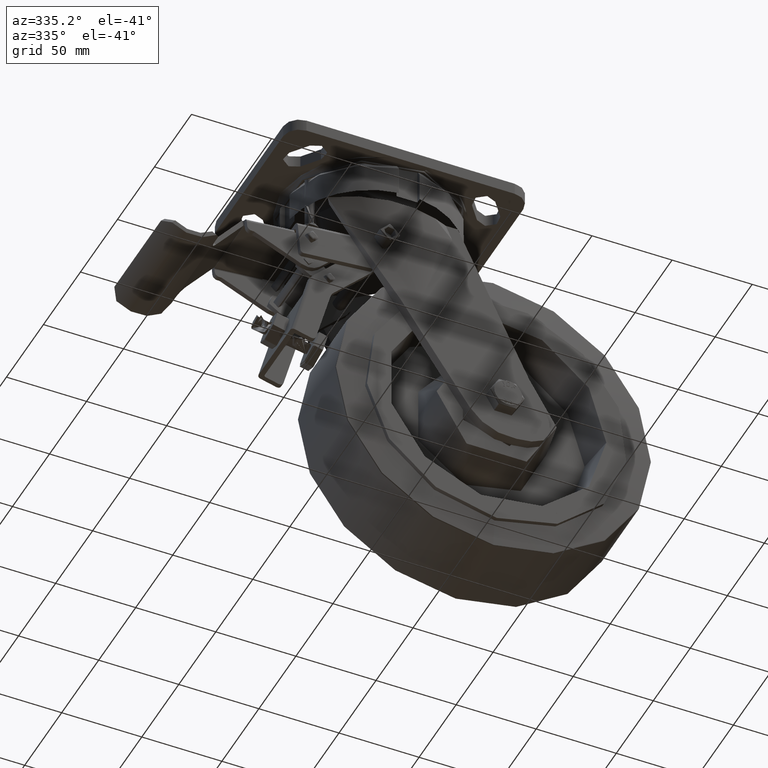
[diagram: clean part render]
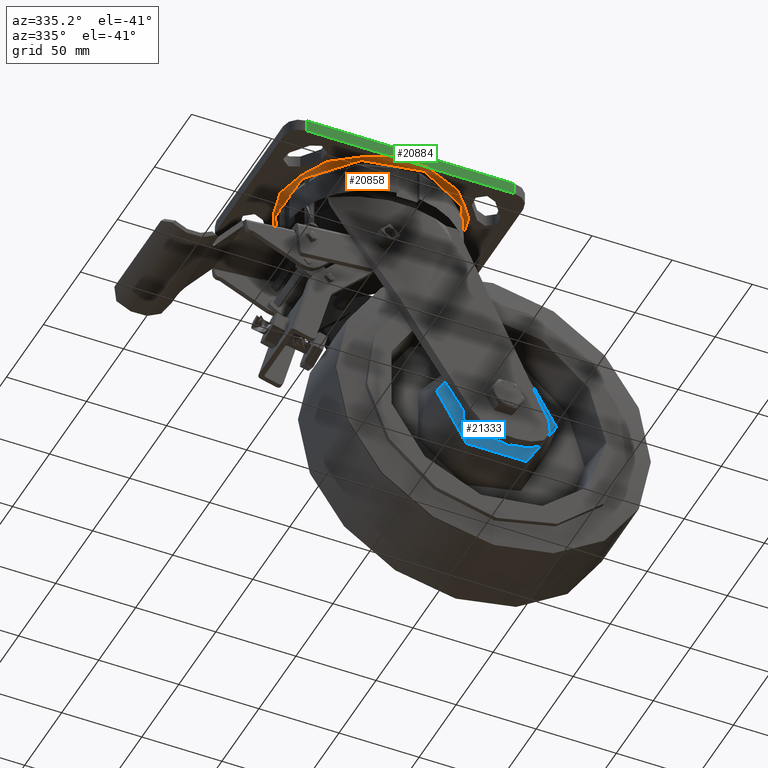
[diagram: same view with three faces highlighted in distinct colors, each labeled with its STEP entity id]
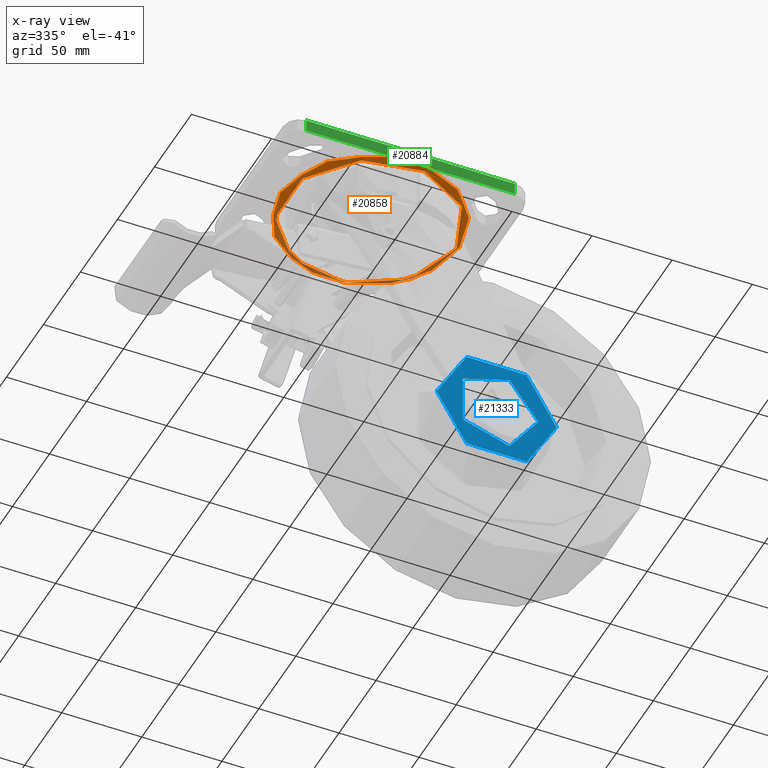
[diagram: x-ray of the same camera — body ghosted, the three highlighted faces saturated]
A machine part, auxiliary view with three faces highlighted in distinct colors.
The next image is the same camera in x-ray (body ghosted, the three faces saturated) — at least one of them is partly hidden behind the body in this view.
Their STEP definitions:

[orange] entity #20858 — the highlighted toroidal blend (fillet) surface has major radius 56 mm and minor (blend) radius 2 mm.
#1509=B_SPLINE_CURVE_WITH_KNOTS('',3,(#30426,#30427,#30428,#30429,#30430,
#30431,#30432,#30433,#30434,#30435,#30436,#30437,#30438,#30439,#30440),
 .UNSPECIFIED.,.F.,.F.,(4,2,2,3,2,2,4),(-0.988194112522738,-0.68476781127084,
-0.34238390563542,0.,0.34238390563542,0.684767811270839,0.988194112522737),
 .UNSPECIFIED.);
#1510=B_SPLINE_CURVE_WITH_KNOTS('',3,(#30444,#30445,#30446,#30447,#30448,
#30449,#30450,#30451,#30452,#30453,#30454,#30455,#30456,#30457,#30458),
 .UNSPECIFIED.,.F.,.F.,(4,2,2,3,2,2,4),(-0.988194112522738,-0.68476781127084,
-0.34238390563542,0.,0.34238390563542,0.684767811270839,0.988194112522737),
 .UNSPECIFIED.);
#2316=TOROIDAL_SURFACE('',#22571,56.,2.);
#2373=FACE_OUTER_BOUND('',#3615,.T.);
#3615=EDGE_LOOP('',(#14162,#14163,#14164,#14165,#14166,#14167,#14168,#14169));
#7931=CIRCLE('',#22570,54.);
#7932=CIRCLE('',#22572,2.);
#7933=CIRCLE('',#22573,56.);
#7934=CIRCLE('',#22574,56.);
#7935=CIRCLE('',#22575,56.);
#8870=VERTEX_POINT('',#30417);
#8871=VERTEX_POINT('',#30421);
#8872=VERTEX_POINT('',#30423);
#8873=VERTEX_POINT('',#30425);
#8874=VERTEX_POINT('',#30441);
#8875=VERTEX_POINT('',#30443);
#10966=EDGE_CURVE('',#8870,#8870,#7931,.T.);
#10967=EDGE_CURVE('',#8870,#8871,#7932,.T.);
#10968=EDGE_CURVE('',#8871,#8872,#7933,.T.);
#10969=EDGE_CURVE('',#8873,#8872,#1509,.F.);
#10970=EDGE_CURVE('',#8873,#8874,#7934,.T.);
#10971=EDGE_CURVE('',#8875,#8874,#1510,.F.);
#10972=EDGE_CURVE('',#8875,#8871,#7935,.T.);
#14162=ORIENTED_EDGE('',*,*,#10966,.T.);
#14163=ORIENTED_EDGE('',*,*,#10967,.T.);
#14164=ORIENTED_EDGE('',*,*,#10968,.T.);
#14165=ORIENTED_EDGE('',*,*,#10969,.F.);
#14166=ORIENTED_EDGE('',*,*,#10970,.T.);
#14167=ORIENTED_EDGE('',*,*,#10971,.F.);
#14168=ORIENTED_EDGE('',*,*,#10972,.T.);
#14169=ORIENTED_EDGE('',*,*,#10967,.F.);
#20858=ADVANCED_FACE('',(#2373),#2316,.F.);
#22570=AXIS2_PLACEMENT_3D('',#30419,#24750,#24751);
#22571=AXIS2_PLACEMENT_3D('',#30420,#24752,#24753);
#22572=AXIS2_PLACEMENT_3D('',#30422,#24754,#24755);
#22573=AXIS2_PLACEMENT_3D('',#30424,#24756,#24757);
#22574=AXIS2_PLACEMENT_3D('',#30442,#24758,#24759);
#22575=AXIS2_PLACEMENT_3D('',#30459,#24760,#24761);
#24750=DIRECTION('center_axis',(0.,0.,1.));
#24751=DIRECTION('ref_axis',(1.,1.22464679914735E-16,0.));
#24752=DIRECTION('center_axis',(0.,0.,-1.));
#24753=DIRECTION('ref_axis',(-1.,0.,0.));
#24754=DIRECTION('center_axis',(1.22464679914735E-16,1.,0.));
#24755=DIRECTION('ref_axis',(1.,-1.22464679914735E-16,0.));
#24756=DIRECTION('center_axis',(0.,0.,-1.));
#24757=DIRECTION('ref_axis',(1.,1.22464679914735E-16,0.));
#24758=DIRECTION('center_axis',(0.,0.,-1.));
#24759=DIRECTION('ref_axis',(1.,1.22464679914735E-16,0.));
#24760=DIRECTION('center_axis',(0.,0.,-1.));
#24761=DIRECTION('ref_axis',(1.,1.22464679914735E-16,0.));
#30417=CARTESIAN_POINT('',(54.,6.61309271539571E-15,-9.5));
#30419=CARTESIAN_POINT('Origin',(0.,0.,-9.5));
#30420=CARTESIAN_POINT('Origin',(0.,0.,-9.5));
#30421=CARTESIAN_POINT('',(56.,-6.85802207522518E-15,-7.5));
#30422=CARTESIAN_POINT('Origin',(56.,-6.85802207522518E-15,-9.5));
#30423=CARTESIAN_POINT('',(10.5356537528528,-55.,-7.5));
#30424=CARTESIAN_POINT('Origin',(0.,0.,-7.5));
#30425=CARTESIAN_POINT('',(-10.5356537528528,-55.,-7.5));
#30426=CARTESIAN_POINT('Ctrl Pts',(10.5356537528528,-55.,-7.5));
#30427=CARTESIAN_POINT('Ctrl Pts',(9.52423274867978,-55.,-7.5));
#30428=CARTESIAN_POINT('Ctrl Pts',(8.3109630787259,-55.,-7.53251203827074));
#30429=CARTESIAN_POINT('Ctrl Pts',(6.15959901540189,-55.,-7.60836008470123));
#30430=CARTESIAN_POINT('Ctrl Pts',(4.90534299900509,-55.,-7.66284474668168));
#30431=CARTESIAN_POINT('Ctrl Pts',(2.39623192440934,-55.,-7.74415286747026));
#30432=CARTESIAN_POINT('Ctrl Pts',(1.1412796854514,-55.,-7.76794919243113));
#30433=CARTESIAN_POINT('Ctrl Pts',(0.,-55.,-7.76794919243113));
#30434=CARTESIAN_POINT('Ctrl Pts',(-1.1412796854514,-55.,-7.76794919243113));
#30435=CARTESIAN_POINT('Ctrl Pts',(-2.39623192440934,-55.,-7.74415286747026));
#30436=CARTESIAN_POINT('Ctrl Pts',(-4.90534299900509,-55.,-7.66284474668168));
#30437=CARTESIAN_POINT('Ctrl Pts',(-6.15959901540189,-55.,-7.60836008470123));
#30438=CARTESIAN_POINT('Ctrl Pts',(-8.3109630787259,-55.,-7.53251203827074));
#30439=CARTESIAN_POINT('Ctrl Pts',(-9.52423274867978,-55.,-7.5));
#30440=CARTESIAN_POINT('Ctrl Pts',(-10.5356537528528,-55.,-7.5));
#30441=CARTESIAN_POINT('',(-10.5356537528528,55.,-7.5));
#30442=CARTESIAN_POINT('Origin',(0.,0.,-7.5));
#30443=CARTESIAN_POINT('',(10.5356537528528,55.,-7.5));
#30444=CARTESIAN_POINT('Ctrl Pts',(-10.5356537528528,55.,-7.5));
#30445=CARTESIAN_POINT('Ctrl Pts',(-9.52423274867978,55.,-7.5));
#30446=CARTESIAN_POINT('Ctrl Pts',(-8.3109630787259,55.,-7.53251203827074));
#30447=CARTESIAN_POINT('Ctrl Pts',(-6.15959901540189,55.,-7.60836008470123));
#30448=CARTESIAN_POINT('Ctrl Pts',(-4.90534299900509,55.,-7.66284474668168));
#30449=CARTESIAN_POINT('Ctrl Pts',(-2.39623192440934,55.,-7.74415286747026));
#30450=CARTESIAN_POINT('Ctrl Pts',(-1.1412796854514,55.,-7.76794919243113));
#30451=CARTESIAN_POINT('Ctrl Pts',(0.,55.,-7.76794919243113));
#30452=CARTESIAN_POINT('Ctrl Pts',(1.1412796854514,55.,-7.76794919243113));
#30453=CARTESIAN_POINT('Ctrl Pts',(2.39623192440934,55.,-7.74415286747026));
#30454=CARTESIAN_POINT('Ctrl Pts',(4.90534299900509,55.,-7.66284474668168));
#30455=CARTESIAN_POINT('Ctrl Pts',(6.15959901540189,55.,-7.60836008470123));
#30456=CARTESIAN_POINT('Ctrl Pts',(8.3109630787259,55.,-7.53251203827074));
#30457=CARTESIAN_POINT('Ctrl Pts',(9.52423274867978,55.,-7.5));
#30458=CARTESIAN_POINT('Ctrl Pts',(10.5356537528528,55.,-7.5));
#30459=CARTESIAN_POINT('Origin',(0.,0.,-7.5));

[blue] entity #21333 — the highlighted planar face has unit normal (0, -1, 0).
#882=FACE_BOUND('',#4181,.T.);
#1211=PLANE('',#23408);
#2848=FACE_OUTER_BOUND('',#4180,.T.);
#4180=EDGE_LOOP('',(#16468));
#4181=EDGE_LOOP('',(#16469));
#8231=CIRCLE('',#23388,37.5);
#8232=CIRCLE('',#23390,26.);
#9591=VERTEX_POINT('',#55160);
#9592=VERTEX_POINT('',#55164);
#12091=EDGE_CURVE('',#9591,#9591,#8231,.T.);
#12092=EDGE_CURVE('',#9592,#9592,#8232,.T.);
#16468=ORIENTED_EDGE('',*,*,#12091,.F.);
#16469=ORIENTED_EDGE('',*,*,#12092,.T.);
#21333=ADVANCED_FACE('',(#2848,#882),#1211,.T.);
#23388=AXIS2_PLACEMENT_3D('',#55162,#27007,#27008);
#23390=AXIS2_PLACEMENT_3D('',#55165,#27011,#27012);
#23408=AXIS2_PLACEMENT_3D('',#55197,#27052,#27053);
#27007=DIRECTION('center_axis',(-3.49148336110938E-15,1.,0.));
#27008=DIRECTION('ref_axis',(-1.,-3.49148336110938E-15,0.));
#27011=DIRECTION('center_axis',(-3.49148336110938E-15,1.,0.));
#27012=DIRECTION('ref_axis',(-1.,-3.49148336110938E-15,0.));
#27052=DIRECTION('center_axis',(3.18979232180907E-15,-1.,0.));
#27053=DIRECTION('ref_axis',(1.,3.18979232180907E-15,0.));
#55160=CARTESIAN_POINT('',(37.5000000000001,-29.9999999999999,4.59242549680257E-15));
#55162=CARTESIAN_POINT('Origin',(1.08213947785235E-13,-30.,0.));
#55164=CARTESIAN_POINT('',(26.0000000000001,-29.9999999999999,3.18408167778312E-15));
#55165=CARTESIAN_POINT('Origin',(1.08213947785235E-13,-30.,0.));
#55197=CARTESIAN_POINT('Origin',(-31.7499999999999,-30.0000000000001,0.));

[green] entity #20884 — the highlighted planar face has unit normal (0, -1, 0).
#1005=PLANE('',#22613);
#1509=B_SPLINE_CURVE_WITH_KNOTS('',3,(#30426,#30427,#30428,#30429,#30430,
#30431,#30432,#30433,#30434,#30435,#30436,#30437,#30438,#30439,#30440),
 .UNSPECIFIED.,.F.,.F.,(4,2,2,3,2,2,4),(-0.988194112522738,-0.68476781127084,
-0.34238390563542,0.,0.34238390563542,0.684767811270839,0.988194112522737),
 .UNSPECIFIED.);
#2399=FACE_OUTER_BOUND('',#3653,.T.);
#3653=EDGE_LOOP('',(#14302,#14303,#14304,#14305,#14306,#14307));
#5047=LINE('',#30385,#6480);
#5050=LINE('',#30400,#6483);
#5072=LINE('',#30523,#6505);
#5082=LINE('',#30536,#6515);
#5089=LINE('',#30546,#6522);
#6480=VECTOR('',#24715,1000.);
#6483=VECTOR('',#24728,1000.);
#6505=VECTOR('',#24822,1000.);
#6515=VECTOR('',#24838,1000.);
#6522=VECTOR('',#24851,1000.);
#8854=VERTEX_POINT('',#30378);
#8857=VERTEX_POINT('',#30383);
#8863=VERTEX_POINT('',#30397);
#8864=VERTEX_POINT('',#30399);
#8872=VERTEX_POINT('',#30423);
#8873=VERTEX_POINT('',#30425);
#10950=EDGE_CURVE('',#8857,#8854,#5047,.T.);
#10956=EDGE_CURVE('',#8863,#8864,#5050,.T.);
#10969=EDGE_CURVE('',#8873,#8872,#1509,.F.);
#11003=EDGE_CURVE('',#8872,#8864,#5072,.T.);
#11013=EDGE_CURVE('',#8863,#8854,#5082,.T.);
#11020=EDGE_CURVE('',#8857,#8873,#5089,.T.);
#14302=ORIENTED_EDGE('',*,*,#10956,.F.);
#14303=ORIENTED_EDGE('',*,*,#11013,.T.);
#14304=ORIENTED_EDGE('',*,*,#10950,.F.);
#14305=ORIENTED_EDGE('',*,*,#11020,.T.);
#14306=ORIENTED_EDGE('',*,*,#10969,.T.);
#14307=ORIENTED_EDGE('',*,*,#11003,.T.);
#20884=ADVANCED_FACE('',(#2399),#1005,.T.);
#22613=AXIS2_PLACEMENT_3D('',#30559,#24874,#24875);
#24715=DIRECTION('',(0.,0.,1.));
#24728=DIRECTION('',(0.,0.,-1.));
#24822=DIRECTION('',(1.,0.,0.));
#24838=DIRECTION('',(-1.,0.,0.));
#24851=DIRECTION('',(1.,0.,0.));
#24874=DIRECTION('center_axis',(0.,-1.,0.));
#24875=DIRECTION('ref_axis',(-1.,0.,0.));
#30378=CARTESIAN_POINT('',(-65.,-55.,0.));
#30383=CARTESIAN_POINT('',(-65.,-55.,-7.5));
#30385=CARTESIAN_POINT('',(-65.,-55.,0.));
#30397=CARTESIAN_POINT('',(65.,-55.,0.));
#30399=CARTESIAN_POINT('',(65.,-55.,-7.5));
#30400=CARTESIAN_POINT('',(65.,-55.,0.));
#30423=CARTESIAN_POINT('',(10.5356537528528,-55.,-7.5));
#30425=CARTESIAN_POINT('',(-10.5356537528528,-55.,-7.5));
#30426=CARTESIAN_POINT('Ctrl Pts',(10.5356537528528,-55.,-7.5));
#30427=CARTESIAN_POINT('Ctrl Pts',(9.52423274867978,-55.,-7.5));
#30428=CARTESIAN_POINT('Ctrl Pts',(8.3109630787259,-55.,-7.53251203827074));
#30429=CARTESIAN_POINT('Ctrl Pts',(6.15959901540189,-55.,-7.60836008470123));
#30430=CARTESIAN_POINT('Ctrl Pts',(4.90534299900509,-55.,-7.66284474668168));
#30431=CARTESIAN_POINT('Ctrl Pts',(2.39623192440934,-55.,-7.74415286747026));
#30432=CARTESIAN_POINT('Ctrl Pts',(1.1412796854514,-55.,-7.76794919243113));
#30433=CARTESIAN_POINT('Ctrl Pts',(0.,-55.,-7.76794919243113));
#30434=CARTESIAN_POINT('Ctrl Pts',(-1.1412796854514,-55.,-7.76794919243113));
#30435=CARTESIAN_POINT('Ctrl Pts',(-2.39623192440934,-55.,-7.74415286747026));
#30436=CARTESIAN_POINT('Ctrl Pts',(-4.90534299900509,-55.,-7.66284474668168));
#30437=CARTESIAN_POINT('Ctrl Pts',(-6.15959901540189,-55.,-7.60836008470123));
#30438=CARTESIAN_POINT('Ctrl Pts',(-8.3109630787259,-55.,-7.53251203827074));
#30439=CARTESIAN_POINT('Ctrl Pts',(-9.52423274867978,-55.,-7.5));
#30440=CARTESIAN_POINT('Ctrl Pts',(-10.5356537528528,-55.,-7.5));
#30523=CARTESIAN_POINT('',(75.,-55.,-7.5));
#30536=CARTESIAN_POINT('',(75.,-55.,0.));
#30546=CARTESIAN_POINT('',(75.,-55.,-7.5));
#30559=CARTESIAN_POINT('Origin',(0.,-55.,0.));